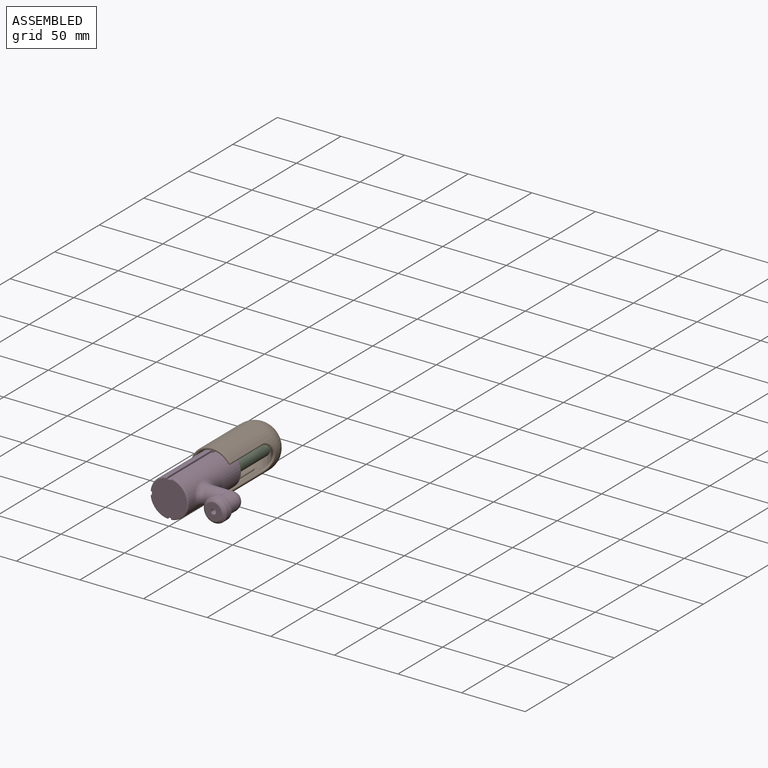
[diagram: assembled view]
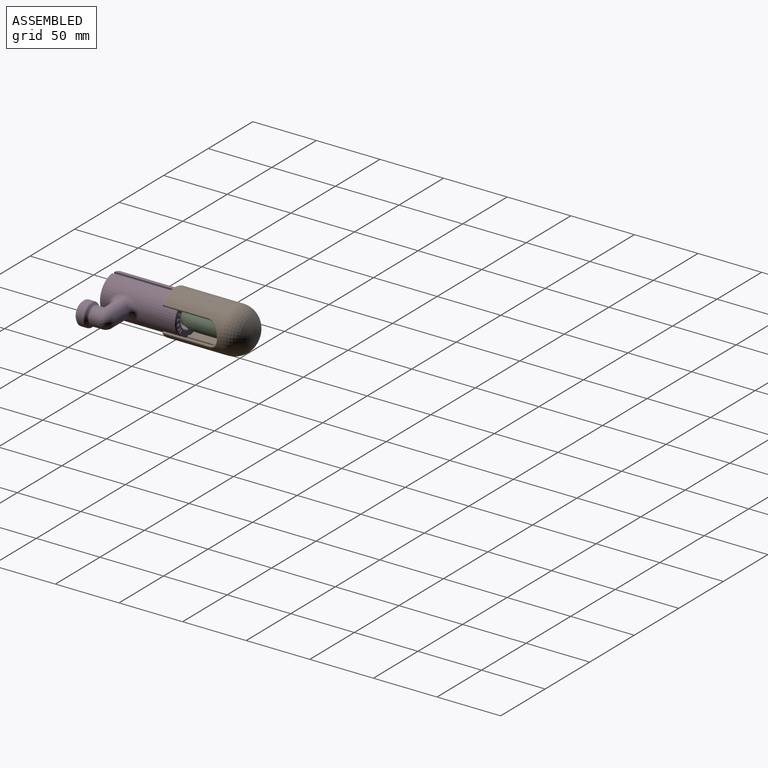
[diagram: assembled view, second angle]
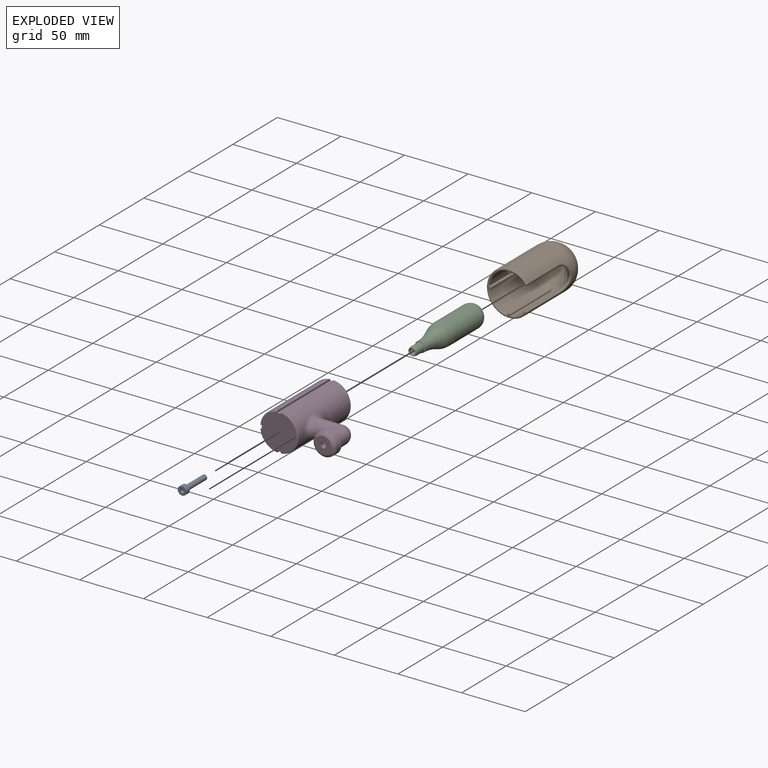
[diagram: exploded view]
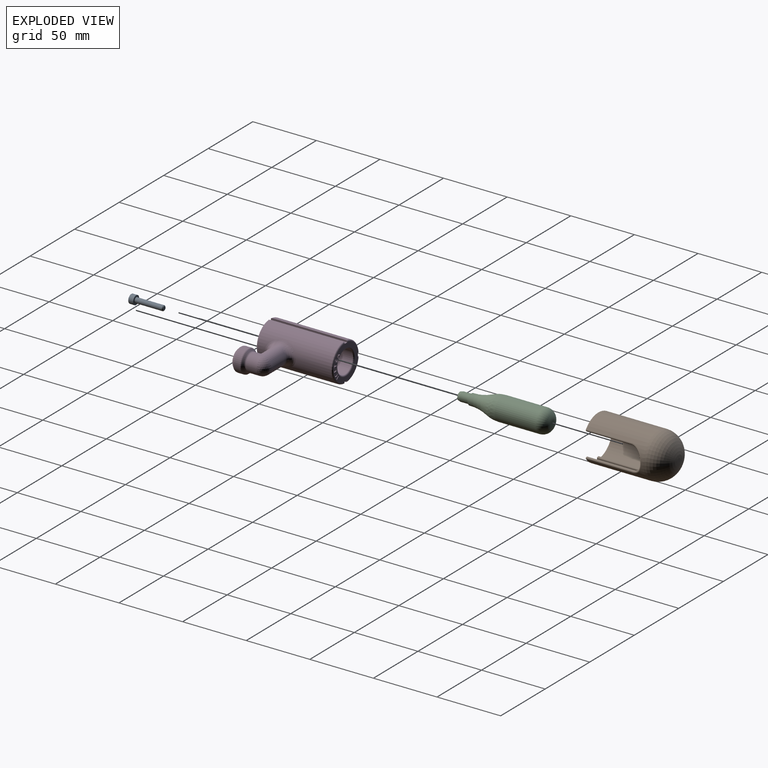
[diagram: exploded view, second angle]
ASSEMBLY  parts=4 mates=3
PART A: 28 faces, bbox 7.5x7.5x26 mm
  f0: cylinder r=2mm len=21.2mm, axis (0,0,-1), area 266.4mm2, adj f5,f7
  f1: plane 3x3mm, normal (0,0,1), area 7.1mm2, adj f7
  f2: cylinder r=3.45mm len=6.9mm, axis (0,0,1), area 78mm2, adj f6,f27
  f3: plane 6.3x6.3mm, normal (0,0,-1), area 20.6mm2, adj f6,f21,f22,f23,f24,f25,f26
  f4: plane 6.7x6.7mm, normal (0,0,1), area 18.6mm2, adj f5,f27
  f5: torus R=2.3mm, axis (0,0,1), area 6.2mm2, adj f0,f4
  f6: torus R=3.15mm, axis (0,0,1), area 9.9mm2, adj f2,f3
  f7: cone r=1.5mm half-angle=45deg, axis (0,0,-1), area 7.8mm2, adj f0,f1
  f8: plane 2.15x1.73mm, normal (0,1,0), area 3.7mm2, adj f9,f13,f17,f23
  f9: plane 2.15x1.5mm, normal (0.87,0.5,0), area 3.7mm2, adj f8,f10,f15,f21
  f10: plane 2.15x1.5mm, normal (0.87,-0.5,0), area 3.7mm2, adj f9,f11,f16,f22
  f11: plane 2.15x1.73mm, normal (0,-1,0), area 3.7mm2, adj f10,f12,f18,f24
  f12: plane 2.15x1.5mm, normal (-0.87,-0.5,0), area 3.7mm2, adj f11,f13,f20,f26
  f13: plane 2.15x1.5mm, normal (-0.87,0.5,0), area 3.7mm2, adj f8,f12,f19,f25
  f14: plane 3.23x2.8mm, normal (0,0,-1), area 6.8mm2, adj f15,f16,f17,f18,f19,f20
  f15: cylinder r=0.1mm len=1.55mm, axis (-0.5,0.87,0), area 0.3mm2, adj f9,f14,f16,f17
  f16: cylinder r=0.1mm len=1.55mm, axis (0.5,0.87,0), area 0.3mm2, adj f10,f14,f15,f18
  f17: cylinder r=0.1mm len=1.73mm, axis (-1,0,0), area 0.3mm2, adj f8,f14,f15,f19
  f18: cylinder r=0.1mm len=1.73mm, axis (1,0,0), area 0.3mm2, adj f11,f14,f16,f20
  f19: cylinder r=0.1mm len=1.55mm, axis (-0.5,-0.87,0), area 0.3mm2, adj f13,f14,f17,f20
  f20: cylinder r=0.1mm len=1.55mm, axis (0.5,-0.87,0), area 0.3mm2, adj f12,f14,f18,f19
  f21: cylinder r=0.25mm len=1.88mm, axis (-0.5,0.87,0), area 0.7mm2, adj f3,f9,f22,f23
  f22: cylinder r=0.25mm len=1.88mm, axis (0.5,0.87,0), area 0.7mm2, adj f3,f10,f21,f24
  f23: cylinder r=0.25mm len=2.02mm, axis (-1,0,0), area 0.7mm2, adj f3,f8,f21,f25
  f24: cylinder r=0.25mm len=2.02mm, axis (1,0,0), area 0.7mm2, adj f3,f11,f22,f26
  f25: cylinder r=0.25mm len=1.88mm, axis (-0.5,-0.87,0), area 0.7mm2, adj f3,f13,f23,f26
  f26: cylinder r=0.25mm len=1.88mm, axis (0.5,-0.87,0), area 0.7mm2, adj f3,f12,f24,f25
  f27: torus R=3.35mm, axis (0,0,1), area 3.4mm2, adj f2,f4
PART B: 56 faces, bbox 37.9x36.4x63.7 mm
  f0: plane 2.1x1.45mm, normal (0,0,-1), area 2.9mm2, adj f31,f32,f33,f41,f53,f55
  f1: plane 2.1x1.45mm, normal (0,0,-1), area 2.9mm2, adj f34,f35,f36,f41,f49,f51
  f2: plane 2.1x1.45mm, normal (0,0,-1), area 2.9mm2, adj f37,f38,f39,f41,f45,f47
  f3: cylinder r=15.5mm len=44mm, axis (0,0,-1), area 597.8mm2, adj f5,f15,f23,f27,f41
  f4: cylinder r=17.5mm len=47.01mm, axis (0,0,-1), area 4191mm2, adj f21,f22,f24,f25,f41,f43
  f5: bspline ~31x31mm, area 1130.6mm2, adj f3,f6,f7,f8,f9,f11,f12,f13
  f6: cylinder r=15.5mm len=44mm, axis (0,0,-1), area 963.4mm2, adj f5,f12,f19,f41
  f7: cylinder r=15.5mm len=44mm, axis (0,0,-1), area 963.4mm2, adj f5,f16,f18,f41
  f8: cylinder r=15.5mm len=44mm, axis (0,0,-1), area 597.8mm2, adj f5,f13,f26,f28,f41
  f9: plane 1.01x1.01mm, normal (0,0,-1), area 0.8mm2, adj f5
  f10: plane 3.62x3.62mm, normal (0,0,1), area 10.3mm2, adj f43
  f11: plane 47.1x0.46mm, normal (1,0,0), area 21.2mm2, adj f5,f38,f44,f46
  f12: plane 45.67x0.69mm, normal (0,-1,0), area 24.9mm2, adj f5,f6,f37,f41,f46
  f13: plane 45.67x0.69mm, normal (0,1,0), area 24.9mm2, adj f5,f8,f39,f41,f44
  f14: plane 47.09x0.45mm, normal (-1,0,0), area 21.2mm2, adj f5,f33,f52,f54
  f15: plane 45.67x0.69mm, normal (0,1,0), area 24.9mm2, adj f3,f5,f31,f41,f54
  f16: plane 45.67x0.69mm, normal (0,-1,0), area 24.9mm2, adj f5,f7,f32,f41,f52
  f17: plane 47.1x0.46mm, normal (0,1,0), area 21.2mm2, adj f5,f36,f48,f50
  f18: plane 45.67x0.69mm, normal (1,0,0), area 24.9mm2, adj f5,f7,f34,f41,f50
  f19: plane 45.67x0.69mm, normal (-1,0,0), area 24.9mm2, adj f5,f6,f35,f41,f48
  f20: cylinder r=9mm len=8.55mm, axis (0,1,0), area 1.8mm2, adj f24,f25,f29,f30
  f21: cylinder r=1mm len=35.2mm, axis (0,0,-1), area 78.2mm2, adj f4,f23,f24,f40
  f22: cylinder r=1mm len=35.2mm, axis (0,0,-1), area 78.2mm2, adj f4,f25,f26,f42
  f23: cylinder r=1mm len=35.2mm, axis (0,0,-1), area 32.4mm2, adj f3,f21,f27,f40
  f24: bspline ~11.99x11.15mm, area 28.9mm2, adj f4,f20,f21,f25,f27
  f25: bspline ~12.76x11.99mm, area 28.9mm2, adj f4,f20,f22,f24,f28
  f26: cylinder r=1mm len=35.2mm, axis (0,0,-1), area 32.4mm2, adj f8,f22,f28,f42
  f27: bspline ~11.02x5.7mm, area 11.8mm2, adj f3,f23,f24,f29
  f28: bspline ~11.02x5.7mm, area 11.8mm2, adj f8,f25,f26,f30
  f29: bspline ~4.85x1.6mm, area 5.1mm2, adj f5,f20,f27,f30
  f30: bspline ~4.82x1.64mm, area 5.1mm2, adj f5,f20,f28,f29
  f31: cylinder r=0.5mm len=1.58mm, axis (-1,0,0), area 0.9mm2, adj f0,f15,f41,f55
  f32: cylinder r=0.5mm len=1.58mm, axis (1,0,0), area 0.9mm2, adj f0,f16,f41,f53
  f33: cylinder r=0.5mm len=0.5mm, axis (0,-1,0), area 0.4mm2, adj f0,f14,f53,f55
  f34: cylinder r=0.5mm len=1.58mm, axis (0,1,0), area 0.9mm2, adj f1,f18,f41,f51
  f35: cylinder r=0.5mm len=1.58mm, axis (0,-1,0), area 0.9mm2, adj f1,f19,f41,f49
  f36: cylinder r=0.5mm len=0.5mm, axis (-1,0,0), area 0.4mm2, adj f1,f17,f49,f51
  f37: cylinder r=0.5mm len=1.58mm, axis (1,0,0), area 0.9mm2, adj f2,f12,f41,f47
  f38: cylinder r=0.5mm len=0.5mm, axis (0,1,0), area 0.4mm2, adj f2,f11,f45,f47
  f39: cylinder r=0.5mm len=1.58mm, axis (-1,0,0), area 0.9mm2, adj f2,f13,f41,f45
  f40: sphere r=1mm, area 3.1mm2, adj f21,f23,f41
  f41: torus R=16.5mm, axis (0,0,1), area 248.2mm2, adj f0,f1,f2,f3,f4,f6,f7,f8
  f42: sphere r=1mm, area 3.1mm2, adj f22,f26,f41
  f43: torus R=1.81mm, axis (0,0,1), area 1827.2mm2, adj f4,f10
  f44: cylinder r=1mm len=47.09mm, axis (0,0,-1), area 72.8mm2, adj f5,f11,f13,f45
  f45: torus R=0.5mm, axis (0,0,1), area 1mm2, adj f2,f38,f39,f44
  f46: cylinder r=1mm len=47.09mm, axis (0,0,1), area 72.8mm2, adj f5,f11,f12,f47
  f47: torus R=0.5mm, axis (0,0,1), area 1mm2, adj f2,f37,f38,f46
  f48: cylinder r=1mm len=47.09mm, axis (0,0,-1), area 72.8mm2, adj f5,f17,f19,f49
  f49: torus R=0.5mm, axis (0,0,1), area 1mm2, adj f1,f35,f36,f48
  f50: cylinder r=1mm len=47.09mm, axis (0,0,1), area 72.8mm2, adj f5,f17,f18,f51
  f51: torus R=0.5mm, axis (0,0,1), area 1mm2, adj f1,f34,f36,f50
  f52: cylinder r=1mm len=47.09mm, axis (0,0,-1), area 72.8mm2, adj f5,f14,f16,f53
  f53: torus R=0.5mm, axis (0,0,1), area 1mm2, adj f0,f32,f33,f52
  f54: cylinder r=1mm len=47.09mm, axis (0,0,1), area 72.8mm2, adj f5,f14,f15,f55
  f55: torus R=0.5mm, axis (0,0,1), area 1mm2, adj f0,f31,f33,f54
PART C: 19 faces, bbox 30.9x87x30.9 mm
  f0: cylinder r=9mm len=32.22mm, axis (0,-1,0), area 1821.7mm2, adj f2,f6
  f1: plane 4x4mm, normal (0,1,0), area 12.6mm2, adj f2
  f2: torus R=2mm, axis (0,-1,0), area 446.1mm2, adj f0,f1
  f3: cylinder r=4.25mm len=8.5mm, axis (0,1,0), area 32.7mm2, adj f5,f10
  f4: plane 7.9x7.9mm, normal (0,-1,0), area 3.7mm2, adj f9,f10
  f5: torus R=38.77mm, axis (0,1,0), area 452.4mm2, adj f3,f6
  f6: revolved ~18x18mm, area 523.3mm2, adj f0,f5
  f7: cylinder r=3.5mm len=7mm, axis (0,1,0), area 146mm2, adj f9,f12
  f8: plane 5.22x5.22mm, normal (0,-1,0), area 1.8mm2, adj f13,f14
  f9: torus R=3.8mm, axis (0,-1,0), area 10.7mm2, adj f4,f7
  f10: torus R=3.95mm, axis (0,-1,0), area 12.3mm2, adj f3,f4
  f11: cone r=3mm half-angle=14deg, axis (0,1,0), area 33.3mm2, adj f12,f13
  f12: torus R=3mm, axis (0,-1,0), area 2.7mm2, adj f7,f11
  f13: torus R=2.61mm, axis (0,-1,0), area 12.1mm2, adj f8,f11
  f14: cylinder r=2.5mm len=19mm, axis (0,-1,0), area 298.5mm2, adj f8,f16
  f15: cylinder r=1.75mm len=13.5mm, axis (0,-1,0), area 148.4mm2, adj f16,f18
  f16: plane 5x5mm, normal (0,-1,0), area 10mm2, adj f14,f15
  f17: plane 2.5x2.5mm, normal (0,-1,0), area 4.9mm2, adj f18
  f18: torus R=1.25mm, axis (0,-1,0), area 7.7mm2, adj f15,f17
PART D: 136 faces, bbox 32.9x60.6x61.3 mm
  f0: plane 27.92x27.84mm, normal (0,-1,0), area 277.8mm2, adj f5,f6,f41,f42,f57,f58,f59,f60
  f1: cylinder r=15mm len=58mm, axis (0,-1,0), area 2201.7mm2, adj f7,f36,f42,f59,f64
  f2: cylinder r=15mm len=58mm, axis (0,-1,0), area 1192.3mm2, adj f5,f8,f61,f65
  f3: cylinder r=15mm len=58mm, axis (0,-1,0), area 1192.3mm2, adj f6,f9,f58,f62
  f4: plane 27.92x27.84mm, normal (0,1,0), area 611.5mm2, adj f7,f8,f9,f57,f58,f59,f60,f61
  f5: torus R=14mm, axis (0,-1,0), area 31.3mm2, adj f0,f2,f61,f65
  f6: torus R=14mm, axis (0,-1,0), area 31.3mm2, adj f0,f3,f58,f62
  f7: torus R=14mm, axis (0,-1,0), area 67.5mm2, adj f1,f4,f59,f64
  f8: torus R=14mm, axis (0,-1,0), area 31.3mm2, adj f2,f4,f61,f65
  f9: torus R=14mm, axis (0,-1,0), area 31.3mm2, adj f3,f4,f58,f62
  f10: cylinder r=7mm len=14mm, axis (0,-1,0), area 270.8mm2, adj f46,f52,f53
  f11: cylinder r=3.5mm len=9.5mm, axis (0,-1,0), area 184mm2, adj f14,f23,f24,f25,f34,f35,f40,f43
  f12: plane 0.5x0.5mm, normal (0,0,-1), area 0.1mm2, adj f29,f35
  f13: plane 0.5x0.5mm, normal (0,0,-1), area 0.1mm2, adj f32,f34
  f14: plane 7x7mm, normal (0,-1,0), area 31.2mm2, adj f11,f16,f17,f18,f19,f20,f21
  f15: cylinder r=9mm len=18mm, axis (0,-1,0), area 634.6mm2, adj f38,f41
  f16: plane 2.5x1.67mm, normal (0,0,1), area 4.2mm2, adj f14,f17,f21,f22
  f17: plane 2.5x1.45mm, normal (-0.87,0,0.5), area 4.2mm2, adj f14,f16,f18,f22
  f18: plane 2.5x1.45mm, normal (-0.87,0,-0.5), area 4.2mm2, adj f14,f17,f19,f22
  f19: plane 2.5x1.67mm, normal (0,0,-1), area 4.2mm2, adj f14,f18,f20,f22
  f20: plane 2.5x1.45mm, normal (0.87,0,-0.5), area 4.2mm2, adj f14,f19,f21,f22
  f21: plane 2.5x1.45mm, normal (0.87,0,0.5), area 4.2mm2, adj f14,f16,f20,f22
  f22: plane 3.35x2.9mm, normal (0,-1,0), area 7.3mm2, adj f16,f17,f18,f19,f20,f21
  f23: plane 5.7x4.92mm, normal (-1,0,0), area 8.6mm2, adj f11,f26,f28,f35,f43
  f24: plane 5.69x4.92mm, normal (1,0,0), area 8.6mm2, adj f11,f26,f33,f34,f43
  f25: plane 4.88x3.04mm, normal (0,-1,0), area 13.8mm2, adj f11,f30,f31,f34,f35
  f26: cylinder r=2mm len=30.92mm, axis (0,0,-1), area 346.7mm2, adj f23,f24,f28,f29,f30,f31,f32,f33
  f27: cylinder r=7mm len=18.87mm, axis (0,0,1), area 621.2mm2, adj f36,f46,f52
  f28: bspline ~1.55x0.52mm, area 0.3mm2, adj f23,f26,f29
  f29: torus R=2.5mm, axis (0,0,-1), area 0.5mm2, adj f12,f26,f28,f30
  f30: bspline ~1.55x0.52mm, area 0.5mm2, adj f25,f26,f29
  f31: bspline ~1.55x0.52mm, area 0.5mm2, adj f25,f26,f32
  f32: torus R=2.5mm, axis (0,0,-1), area 0.5mm2, adj f13,f26,f31,f33
  f33: bspline ~1.55x0.52mm, area 0.3mm2, adj f24,f26,f32
  f34: cylinder r=0.5mm len=5.13mm, axis (0,0,-1), area 3.9mm2, adj f11,f13,f24,f25
  f35: cylinder r=0.5mm len=5.13mm, axis (0,0,1), area 3.9mm2, adj f11,f12,f23,f25
  f36: bspline ~24.01x18.02mm, area 330mm2, adj f1,f27
  f37: cylinder r=3.92mm len=16.56mm, axis (0,-1,0), area 408.3mm2, adj f39,f40
  f38: bspline ~18.47x18.47mm, area 325.9mm2, adj f15,f39
  f39: bspline ~8.72x8.71mm, area 24.6mm2, adj f37,f38
  f40: torus R=2.93mm, axis (0,1,0), area 22.8mm2, adj f11,f37
  f41: torus R=10mm, axis (0,-1,0), area 92.4mm2, adj f0,f15
  f42: torus R=14mm, axis (0,-1,0), area 67.5mm2, adj f0,f1,f59,f64
  f43: bspline ~5.23x4.8mm, area 17.9mm2, adj f11,f23,f24,f26
  f44: plane 12.8x12.8mm, normal (0,1,0), area 116.1mm2, adj f47,f48,f55
  f45: sphere r=2mm, area 12.6mm2, adj f26,f47,f48
  f46: sphere r=7mm, area 154.1mm2, adj f10,f27
  f47: extruded ~19x4mm, area 116.4mm2, adj f26,f44,f45,f48
  f48: extruded ~19x3.99mm, area 114.3mm2, adj f44,f45,f47
  f49: cylinder r=9mm len=18mm, axis (0,1,0), area 271.4mm2, adj f54,f56
  f50: cone r=7mm half-angle=45deg, axis (0,-1,0), area 81.9mm2, adj f54,f55
  f51: cone r=9mm half-angle=45deg, axis (0,1,0), area 81.9mm2, adj f53,f56
  f52: bspline ~14x8.45mm, area 35.7mm2, adj f10,f27,f53
  f53: torus R=8.45mm, axis (0,-1,0), area 51.1mm2, adj f10,f51,f52
  f54: torus R=7.55mm, axis (0,1,0), area 63.3mm2, adj f49,f50
  f55: torus R=6.4mm, axis (0,-1,0), area 49.6mm2, adj f44,f50
  f56: torus R=7.55mm, axis (0,-1,0), area 63.3mm2, adj f49,f51
  f57: plane 60x3mm, normal (1,0,0), area 180mm2, adj f0,f4,f58,f59
  f58: plane 60.05x1.47mm, normal (0,0,1), area 85.1mm2, adj f0,f3,f4,f6,f9,f57
  f59: plane 60.05x1.47mm, normal (0,0,-1), area 85.1mm2, adj f0,f1,f4,f7,f42,f57
  f60: plane 60x3mm, normal (0,0,-1), area 180mm2, adj f0,f4,f61,f62
  f61: plane 60.05x1.47mm, normal (1,0,0), area 85.1mm2, adj f0,f2,f4,f5,f8,f60
  f62: plane 60.05x1.47mm, normal (-1,0,0), area 85.1mm2, adj f0,f3,f4,f6,f9,f60
  f63: plane 60x3mm, normal (-1,0,0), area 180mm2, adj f0,f4,f64,f65
  f64: plane 60.05x1.47mm, normal (0,0,-1), area 85.1mm2, adj f0,f1,f4,f7,f42,f63
  f65: plane 60.05x1.47mm, normal (0,0,1), area 85.1mm2, adj f0,f2,f4,f5,f8,f63
  f66: extruded ~1x0.48mm, area 0.6mm2, adj f0,f67,f80,f81
  f67: extruded ~1x0.33mm, area 0.3mm2, adj f0,f66,f68,f81
  f68: extruded ~1x0.37mm, area 0.4mm2, adj f0,f67,f69,f81
  f69: plane 1x0.56mm, normal (-1,0,-0.05), area 0.6mm2, adj f0,f68,f70,f81
  f70: extruded ~1x0.88mm, area 0.9mm2, adj f0,f69,f71,f81
  f71: extruded ~1x0.6mm, area 0.8mm2, adj f0,f70,f72,f81
  f72: extruded ~1x0.69mm, area 0.7mm2, adj f0,f71,f73,f81
  f73: extruded ~1x0.82mm, area 0.8mm2, adj f0,f72,f74,f81
  f74: extruded ~1x0.89mm, area 1.2mm2, adj f0,f73,f75,f81
  f75: extruded ~1.07x1mm, area 1.1mm2, adj f0,f74,f76,f81
  f76: extruded ~1x0.68mm, area 0.8mm2, adj f0,f75,f77,f81
  f77: plane 1x0.48mm, normal (-0.91,0,-0.42), area 0.5mm2, adj f0,f76,f78,f81
  f78: extruded ~1x0.63mm, area 0.8mm2, adj f0,f77,f79,f81
  f79: extruded ~1.1x1mm, area 1.4mm2, adj f0,f78,f80,f81
  f80: extruded ~1x0.76mm, area 0.8mm2, adj f0,f66,f79,f81
  f81: plane 3.2x2.74mm, normal (0,-1,0), area 3.2mm2, adj f66,f67,f68,f69,f70,f71,f72,f73
  f82: plane 1.71x1mm, normal (-0.14,0,0.99), area 1.7mm2, adj f0,f83,f93,f94
  f83: plane 1x0.52mm, normal (-0.99,0,-0.14), area 0.5mm2, adj f0,f82,f84,f94
  f84: plane 1.08x1mm, normal (0.14,0,-0.99), area 1.1mm2, adj f0,f83,f85,f94
  f85: plane 1x0.76mm, normal (-0.99,0,-0.14), area 0.8mm2, adj f0,f84,f86,f94
  f86: plane 1x1mm, normal (-0.14,0,0.99), area 1mm2, adj f0,f85,f87,f94
  f87: plane 1x0.51mm, normal (-0.99,0,-0.14), area 0.5mm2, adj f0,f86,f88,f94
  f88: plane 1x1mm, normal (0.14,0,-0.99), area 1mm2, adj f0,f87,f89,f94
  f89: plane 1x0.65mm, normal (-0.99,0,-0.14), area 0.7mm2, adj f0,f88,f90,f94
  f90: plane 1.08x1mm, normal (-0.14,0,0.99), area 1.1mm2, adj f0,f89,f91,f94
  f91: plane 1x0.51mm, normal (-0.99,0,-0.14), area 0.5mm2, adj f0,f90,f92,f94
  f92: plane 1.71x1mm, normal (0.14,0,-0.99), area 1.7mm2, adj f0,f91,f93,f94
  f93: plane 2.96x1mm, normal (0.99,0,0.14), area 3mm2, adj f0,f82,f92,f94
  f94: plane 3.2x2.11mm, normal (0,-1,0), area 3.6mm2, adj f82,f83,f84,f85,f86,f87,f88,f89
  f95: plane 1x0.63mm, normal (0.15,0,0.99), area 0.6mm2, adj f0,f96,f102,f103
  f96: plane 2.44x1mm, normal (-0.99,0,0.15), area 2.5mm2, adj f0,f95,f97,f103
  f97: plane 1x0.8mm, normal (0.15,0,0.99), area 0.8mm2, adj f0,f96,f98,f103
  f98: plane 1x0.52mm, normal (-0.99,0,0.15), area 0.5mm2, adj f0,f97,f99,f103
  f99: plane 2.24x1mm, normal (-0.15,0,-0.99), area 2.3mm2, adj f0,f98,f100,f103
  f100: plane 1x0.52mm, normal (0.99,0,-0.15), area 0.5mm2, adj f0,f99,f101,f103
  f101: plane 1x0.8mm, normal (0.15,0,0.99), area 0.8mm2, adj f0,f100,f102,f103
  f102: plane 2.44x1mm, normal (0.99,0,-0.15), area 2.5mm2, adj f0,f95,f101,f103
  f103: plane 3.17x2.31mm, normal (0,-1,0), area 2.8mm2, adj f95,f96,f97,f98,f99,f100,f101,f102
  f104: plane 1.56x1mm, normal (0.42,0,0.91), area 1.7mm2, adj f0,f105,f115,f116
  f105: plane 1x0.48mm, normal (-0.91,0,0.42), area 0.5mm2, adj f0,f104,f106,f116
  f106: plane 1x0.99mm, normal (-0.42,0,-0.91), area 1.1mm2, adj f0,f105,f107,f116
  f107: plane 1x0.7mm, normal (-0.91,0,0.42), area 0.8mm2, adj f0,f106,f108,f116
  f108: plane 1x0.92mm, normal (0.42,0,0.91), area 1mm2, adj f0,f107,f109,f116
  f109: plane 1x0.47mm, normal (-0.91,0,0.42), area 0.5mm2, adj f0,f108,f110,f116
  f110: plane 1x0.92mm, normal (-0.42,0,-0.91), area 1mm2, adj f0,f109,f111,f116
  f111: plane 1x0.6mm, normal (-0.91,0,0.42), area 0.7mm2, adj f0,f110,f112,f116
  f112: plane 1x0.99mm, normal (0.42,0,0.91), area 1.1mm2, adj f0,f111,f113,f116
  f113: plane 1x0.47mm, normal (-0.91,0,0.42), area 0.5mm2, adj f0,f112,f114,f116
  f114: plane 1.56x1mm, normal (-0.42,0,-0.91), area 1.7mm2, adj f0,f113,f115,f116
  f115: plane 2.71x1.26mm, normal (0.91,0,-0.42), area 3mm2, adj f0,f104,f114,f116
  f116: plane 3.44x2.82mm, normal (0,-1,0), area 3.6mm2, adj f104,f105,f106,f107,f108,f109,f110,f111
  f117: extruded ~1.04x1mm, area 1.1mm2, adj f118,f128,f129,f135
  f118: plane 1x0.57mm, normal (-0.68,0,-0.73), area 0.8mm2, adj f117,f119,f129,f135
  f119: extruded ~1.17x1mm, area 1.4mm2, adj f118,f128,f129,f135
  f120: plane 1x0.67mm, normal (0.9,0,-0.44), area 0.7mm2, adj f0,f121,f127,f129
  f121: plane 1x0.5mm, normal (0.68,0,0.73), area 0.7mm2, adj f0,f120,f122,f129
  f122: plane 2.93x1.27mm, normal (-0.92,0,0.4), area 3.2mm2, adj f0,f121,f123,f129
  f123: plane 1x0.57mm, normal (-0.68,0,-0.73), area 0.8mm2, adj f0,f122,f124,f129
  f124: plane 2.82x1.49mm, normal (0.47,0,-0.88), area 3.2mm2, adj f0,f123,f125,f129
  f125: plane 1x0.5mm, normal (0.68,0,0.73), area 0.7mm2, adj f0,f124,f126,f129
  f126: plane 1x0.65mm, normal (-0.5,0,0.86), area 0.7mm2, adj f0,f125,f127,f129
  f127: plane 1x0.8mm, normal (0.68,0,0.73), area 1.1mm2, adj f0,f120,f126,f129
  f128: extruded ~1x0.18mm, area 0.2mm2, adj f117,f119,f129,f135
  f129: plane 3.46x3.4mm, normal (0,-1,0), area 4.1mm2, adj f117,f118,f119,f120,f121,f122,f123,f124
  f130: plane 2.31x1.88mm, normal (0.78,0,0.63), area 3mm2, adj f0,f131,f133,f134
  f131: plane 1x0.49mm, normal (-0.63,0,0.78), area 0.6mm2, adj f0,f130,f132,f134
  f132: plane 2.31x1.88mm, normal (-0.78,0,-0.63), area 3mm2, adj f0,f131,f133,f134
  f133: plane 1x0.49mm, normal (0.63,0,-0.78), area 0.6mm2, adj f0,f130,f132,f134
  f134: plane 2.71x2.37mm, normal (0,-1,0), area 1.9mm2, adj f130,f131,f132,f133
  f135: plane 1.22x1.17mm, normal (0,-1,0), area 0.5mm2, adj f117,f118,f119,f128
PLACE A rot(axis=(-0.58,-0.58,-0.58),120deg) t=(0,18.5,0)mm
PLACE B rot(axis=(-0.58,-0.58,-0.58),120deg) t=(0,48.5,0)mm
PLACE C rot(axis=(0,-1,0),90deg) t=(0,63.5,0)mm
PLACE D rot(axis=(0.71,0,0.71),180deg) t=(0,60,0)mm
MATE fastened C.f3 <-> A.f0  axis (0,-1,0) through (0,40.5,0)mm
MATE fastened A.f0 <-> D.f37  axis (0,-1,0) through (0,17,0)mm
MATE fastened B.f4 <-> C.f0  axis (0,-1,0) through (0,108.5,0)mm
